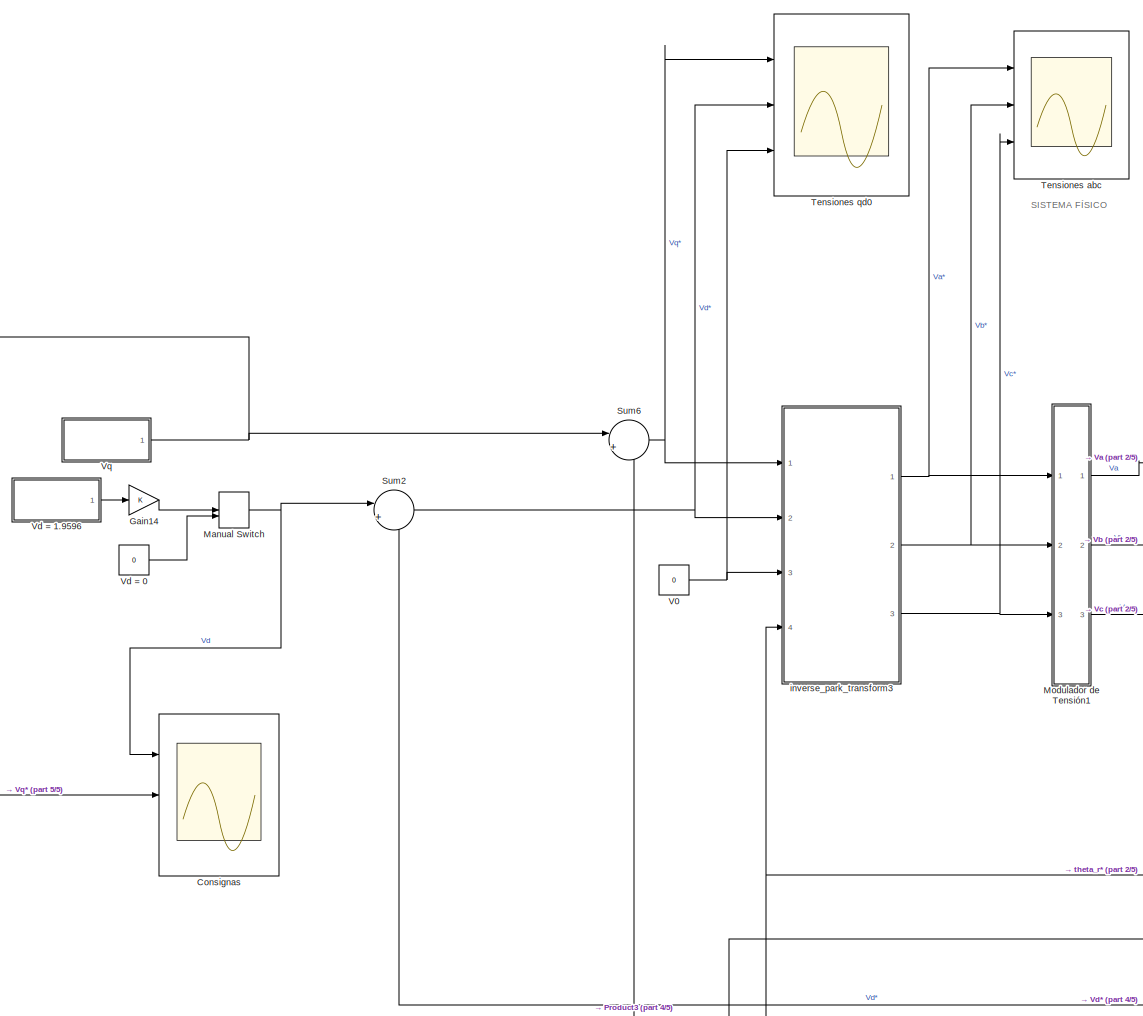
[diagram: root canvas - part 1/5, top left region]
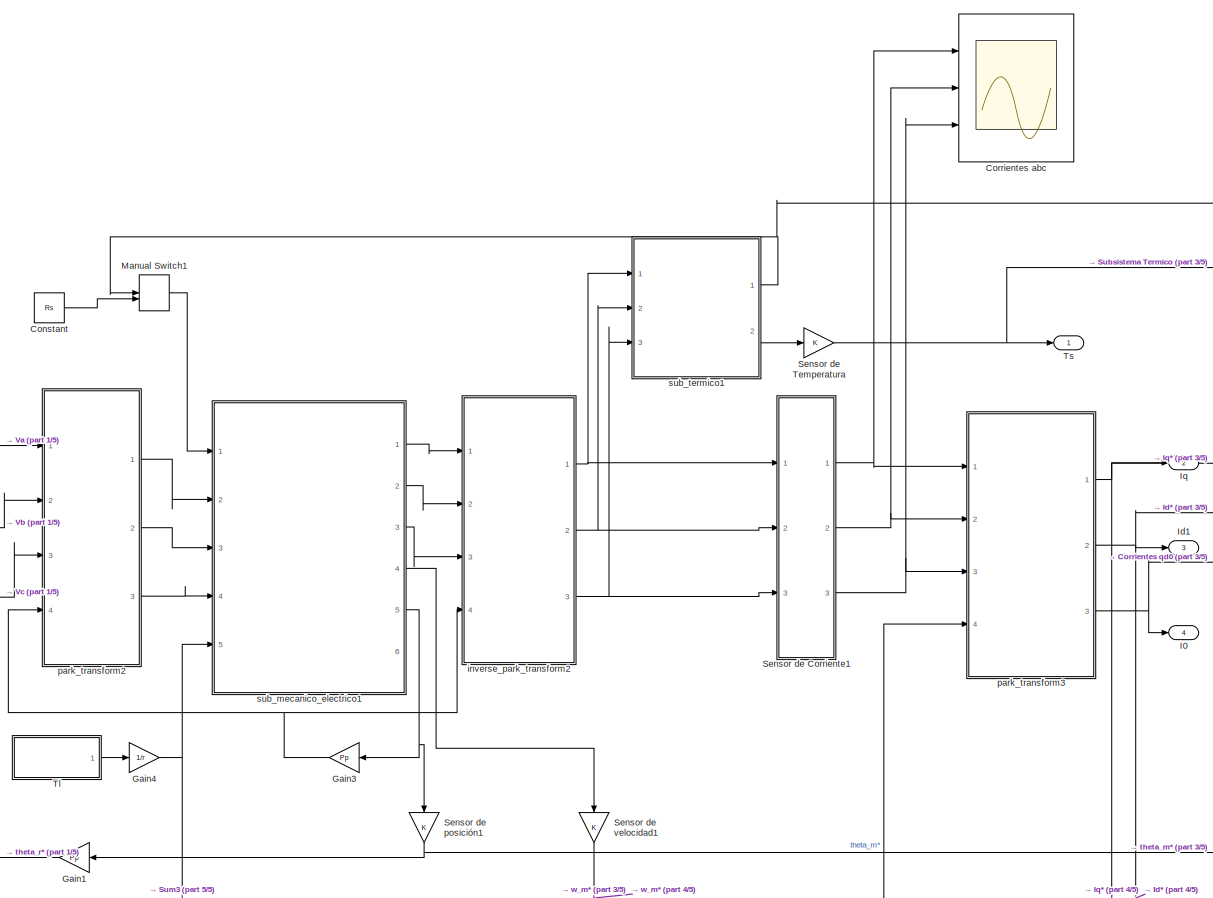
[diagram: root canvas - part 2/5, top center region]
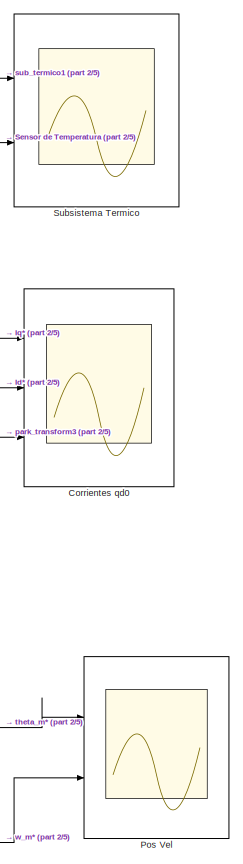
[diagram: root canvas - part 3/5, top right region]
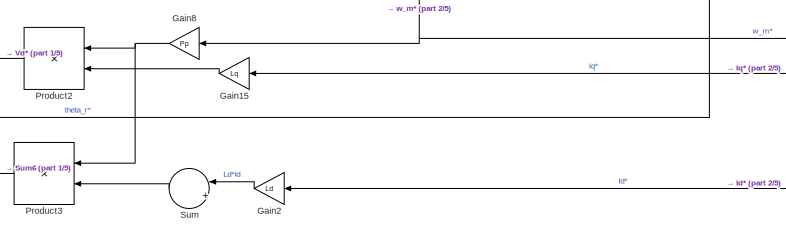
[diagram: root canvas - part 4/5, central region]
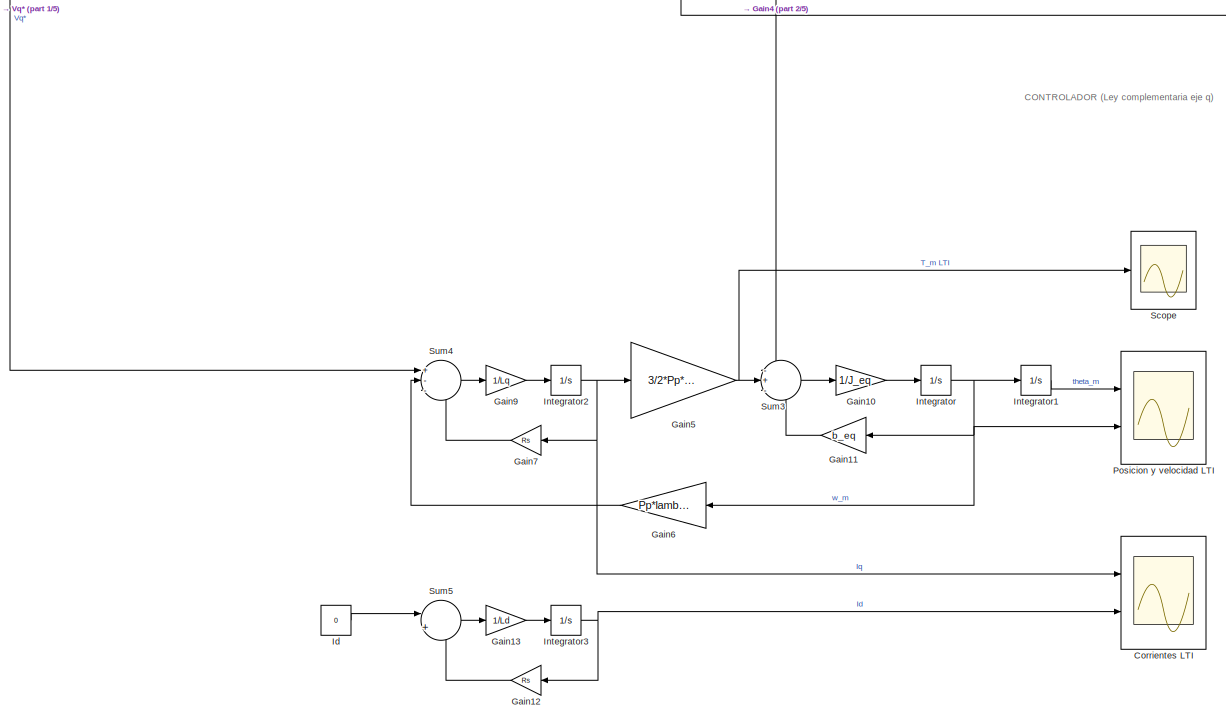
[diagram: root canvas - part 5/5, bottom left region]
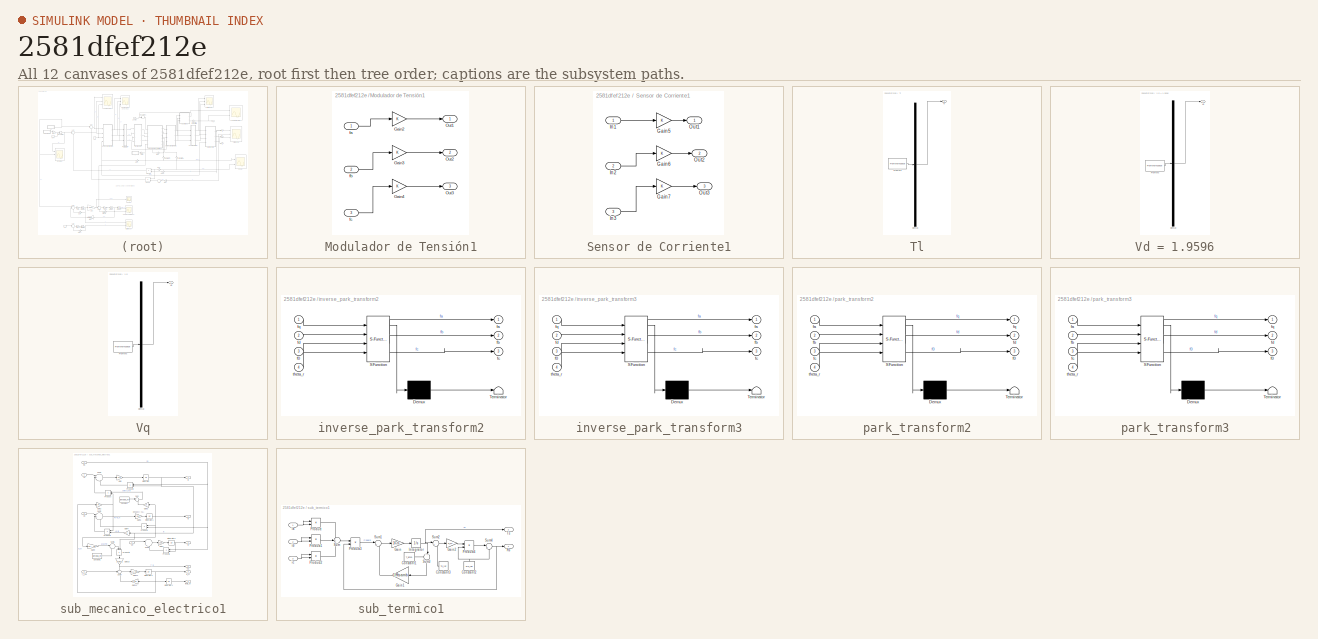
[diagram: thumbnail index - all 12 canvases of the model, root first then tree order]
MODEL slx_2581dfef212e
KIND model
CONFIG AbsTol = auto
CONFIG EnableMultiTasking = off
CONFIG FixedStep = 0.001
CONFIG MaxStep = 0.0001
CONFIG MinStep = auto
CONFIG RelTol = 1e-3
CONFIG SampleTimeConstraint = Unconstrained
CONFIG SolverName = VariableStepAuto
CONFIG StartTime = 0.0
CONFIG StopTime = 1.0
BLOCK [Scope] Consignas
  Floating = off
  NumInputPorts = 3
  Ports = [3]
  ScopeSpecificationString = Simulink.scopes.TimeScopeBlockCfg('CurrentConfiguration', extmgr.ConfigurationSet(extmgr.Configuration('Core','General UI',true,'FigureColor',[0.156862745098039 0.156862745098039 0.156862745098039]),extmgr.Configuration('Core','Source UI',true),extmgr.Configuration('Sources','WiredSimulink',true,'DataLoggingVariableName','Consignas','DataLogging',true,'DataLoggingSaveFormat','StructureWithTime'),e...<+1509ch>
BLOCK [Constant] Constant
  Value = Rs
BLOCK [Scope] Corrientes LTI
  Floating = off
  NumInputPorts = 2
  Ports = [2]
  ScopeSpecificationString = Simulink.scopes.TimeScopeBlockCfg('CurrentConfiguration', extmgr.ConfigurationSet(extmgr.Configuration('Core','General UI',true,'FigureColor',[0.156862745098039 0.156862745098039 0.156862745098039]),extmgr.Configuration('Core','Source UI',true),extmgr.Configuration('Sources','WiredSimulink',true,'DataLoggingVariableName','Corrientes_qd0_LTI','DataLogging',true,'DataLoggingSaveFormat','StructureWit...<+1630ch>
BLOCK [Scope] Corrientes abc
  Floating = off
  NumInputPorts = 3
  Ports = [3]
  ScopeSpecificationString = Simulink.scopes.TimeScopeBlockCfg('CurrentConfiguration', extmgr.ConfigurationSet(extmgr.Configuration('Core','General UI',true,'FigureColor',[0.156862745098039 0.156862745098039 0.156862745098039]),extmgr.Configuration('Core','Source UI',true),extmgr.Configuration('Sources','WiredSimulink',true,'DataLoggingVariableName','Corrientes_abc','DataLogging',true,'DataLoggingSaveFormat','StructureWithTim...<+1688ch>
BLOCK [Scope] Corrientes qd0
  Floating = off
  NumInputPorts = 3
  Ports = [3]
  ScopeSpecificationString = Simulink.scopes.TimeScopeBlockCfg('CurrentConfiguration', extmgr.ConfigurationSet(extmgr.Configuration('Core','General UI',true),extmgr.Configuration('Core','Source UI',true),extmgr.Configuration('Sources','WiredSimulink',true,'DataLoggingVariableName','Corrientes_qd0','DataLogging',true,'DataLoggingSaveFormat','StructureWithTime'),extmgr.Configuration('Visuals','Time Domain',true,'SerializedDispl...<+1456ch>
BLOCK [Gain] Gain1
  Gain = Pp
BLOCK [Gain] Gain10
  Gain = 1/J_eq
BLOCK [Gain] Gain11
  Gain = b_eq
BLOCK [Gain] Gain12
  Gain = Rs
BLOCK [Gain] Gain13
  Gain = 1/Ld
BLOCK [Gain] Gain14
BLOCK [Gain] Gain15
  Gain = Lq
BLOCK [Gain] Gain2
  Gain = Ld
BLOCK [Gain] Gain3
  Gain = Pp
BLOCK [Gain] Gain4
  Gain = 1/r
BLOCK [Gain] Gain5
  Gain = 3/2*Pp*lambda_m
BLOCK [Gain] Gain6
  Gain = Pp*lambda_m
BLOCK [Gain] Gain7
  Gain = Rs
BLOCK [Gain] Gain8
  Gain = Pp
BLOCK [Gain] Gain9
  Gain = 1/Lq
BLOCK [Outport] I0
  Port = 4
BLOCK [Constant] Id
  Value = 0
BLOCK [Outport] Id1
  Port = 3
BLOCK [Integrator] Integrator
  Ports = [1, 1]
BLOCK [Integrator] Integrator1
  Ports = [1, 1]
BLOCK [Integrator] Integrator2
  Ports = [1, 1]
BLOCK [Integrator] Integrator3
  InitialCondition = Id_0
  Ports = [1, 1]
BLOCK [Outport] Iq
  Port = 2
BLOCK [ManualSwitch] Manual Switch
  CurrentSetting = 0
BLOCK [ManualSwitch] Manual Switch1
BLOCK [SubSystem] Modulador de Tensión1
  Ports = [3, 3]
  RequestExecContextInheritance = off
BLOCK [Gain] Modulador de Tensión1/Gain2
BLOCK [Gain] Modulador de Tensión1/Gain3
BLOCK [Gain] Modulador de Tensión1/Gain4
BLOCK [Outport] Modulador de Tensión1/Out1
BLOCK [Outport] Modulador de Tensión1/Out2
  Port = 2
BLOCK [Outport] Modulador de Tensión1/Out3
  Port = 3
BLOCK [Inport] Modulador de Tensión1/fa
BLOCK [Inport] Modulador de Tensión1/fb
  Port = 2
BLOCK [Inport] Modulador de Tensión1/fc
  Port = 3
BLOCK [Scope] Pos Vel
  Floating = off
  NumInputPorts = 2
  Ports = [2]
  ScopeSpecificationString = Simulink.scopes.TimeScopeBlockCfg('CurrentConfiguration', extmgr.ConfigurationSet(extmgr.Configuration('Core','General UI',true),extmgr.Configuration('Core','Source UI',true),extmgr.Configuration('Sources','WiredSimulink',true,'DataLoggingVariableName','Pos_Vel','DataLogging',true,'DataLoggingSaveFormat','StructureWithTime'),extmgr.Configuration('Visuals','Time Domain',true,'SerializedDisplays',{s...<+1529ch>
BLOCK [Scope] Posicion y velocidad LTI
  Floating = off
  NumInputPorts = 2
  Ports = [2]
  ScopeSpecificationString = Simulink.scopes.TimeScopeBlockCfg('CurrentConfiguration', extmgr.ConfigurationSet(extmgr.Configuration('Core','General UI',true,'FigureColor',[0.156862745098039 0.156862745098039 0.156862745098039]),extmgr.Configuration('Core','Source UI',true),extmgr.Configuration('Sources','WiredSimulink',true,'DataLoggingVariableName','Pos_Vel_LTI','DataLogging',true,'DataLoggingSaveFormat','StructureWithTime')...<+1647ch>
BLOCK [Product] Product2
  Ports = [2, 1]
BLOCK [Product] Product3
  Ports = [2, 1]
BLOCK [Scope] Scope
  Floating = off
  NumInputPorts = 1
  Ports = [1]
  ScopeSpecificationString = Simulink.scopes.TimeScopeBlockCfg('CurrentConfiguration', extmgr.ConfigurationSet(extmgr.Configuration('Core','General UI',true),extmgr.Configuration('Core','Source UI',true),extmgr.Configuration('Sources','WiredSimulink',true,'DataLoggingVariableName','Tm_LTI','DataLogging',true,'DataLoggingSaveFormat','StructureWithTime'),extmgr.Configuration('Visuals','Time Domain',true,'SerializedDisplays',{st...<+1425ch>
BLOCK [SubSystem] Sensor de Corriente1
  Ports = [3, 3]
  RequestExecContextInheritance = off
BLOCK [Gain] Sensor de Corriente1/Gain5
BLOCK [Gain] Sensor de Corriente1/Gain6
BLOCK [Gain] Sensor de Corriente1/Gain7
BLOCK [Inport] Sensor de Corriente1/In1
BLOCK [Inport] Sensor de Corriente1/In2
  Port = 2
BLOCK [Inport] Sensor de Corriente1/In3
  Port = 3
BLOCK [Outport] Sensor de Corriente1/Out1
BLOCK [Outport] Sensor de Corriente1/Out2
  Port = 2
BLOCK [Outport] Sensor de Corriente1/Out3
  Port = 3
BLOCK [Gain] Sensor de Temperatura
BLOCK [Gain] Sensor de posición1
  NameLocation = right
BLOCK [Gain] Sensor de velocidad1
  NameLocation = right
BLOCK [Scope] Subsistema Termico
  Floating = off
  NumInputPorts = 2
  Ports = [2]
  ScopeSpecificationString = Simulink.scopes.TimeScopeBlockCfg('CurrentConfiguration', extmgr.ConfigurationSet(extmgr.Configuration('Core','General UI',true),extmgr.Configuration('Core','Source UI',true),extmgr.Configuration('Sources','WiredSimulink',true,'DataLoggingVariableName','Subs_Termico','DataLogging',true,'DataLoggingSaveFormat','StructureWithTime'),extmgr.Configuration('Visuals','Time Domain',true,'SerializedDisplay...<+1466ch>
BLOCK [Sum] Sum
  Inputs = |++
  Ports = [2, 1]
BLOCK [Sum] Sum2
  Inputs = |+-
  Ports = [2, 1]
BLOCK [Sum] Sum3
  Inputs = -+-
  Ports = [3, 1]
BLOCK [Sum] Sum4
  Inputs = +--
  Ports = [3, 1]
BLOCK [Sum] Sum5
  Inputs = |+-
  Ports = [2, 1]
BLOCK [Sum] Sum6
  Inputs = |++
  Ports = [2, 1]
BLOCK [Scope] Tensiones abc
  Floating = off
  NumInputPorts = 3
  Ports = [3]
  ScopeSpecificationString = Simulink.scopes.TimeScopeBlockCfg('CurrentConfiguration', extmgr.ConfigurationSet(extmgr.Configuration('Core','General UI',true,'FigureColor',[0.156862745098039 0.156862745098039 0.156862745098039]),extmgr.Configuration('Core','Source UI',true),extmgr.Configuration('Sources','WiredSimulink',true,'DataLoggingVariableName','Tensiones_abc','DataLogging',true,'DataLoggingSaveFormat','StructureWithTime...<+1652ch>
BLOCK [Scope] Tensiones qd0
  Floating = off
  NumInputPorts = 3
  Ports = [3]
  ScopeSpecificationString = Simulink.scopes.TimeScopeBlockCfg('CurrentConfiguration', extmgr.ConfigurationSet(extmgr.Configuration('Core','General UI',true),extmgr.Configuration('Core','Source UI',true),extmgr.Configuration('Sources','WiredSimulink',true,'DataLoggingVariableName','Tensiones_qd0','DataLogging',true,'DataLoggingSaveFormat','StructureWithTime'),extmgr.Configuration('Visuals','Time Domain',true,'SerializedDispla...<+1524ch>
BLOCK [SubSystem] Tl
  ClipboardFcn = sigbuilder_block('clipboard');
  CloseFcn = sigbuilder_block('close');
  ContinueFcn = sigbuilder_block('continue');
  CopyFcn = sigbuilder_block('copy');
  DeleteFcn = sigbuilder_block('delete');
  LoadFcn = sigbuilder_block('load');
  MaskHideContents = on
  ModelCloseFcn = sigbuilder_block('modelClose');
  NameChangeFcn = sigbuilder_block('namechange');
  OpenFcn = sigbuilder_block('open',[5.5 30 1269 678 ]);
  PauseFcn = sigbuilder_block('pause');
  Ports = [0, 1]
  PreSaveFcn = sigbuilder_block('preSave');
  RequestExecContextInheritance = off
  StartFcn = sigbuilder_block('start');
  StopFcn = sigbuilder_block('stop');
  Tag = STV Subsys
BLOCK [Demux] Tl/Demux
  DisplayOption = none
  Outputs = 1
  Ports = [1, 1]
  Tag = STV Demux
BLOCK [FromWorkspace] Tl/FromWs
  Tag = STV FromWs
  VariableName = tuvar
BLOCK [Outport] Tl/Tl
  Tag = STV Outport
BLOCK [Outport] Ts
BLOCK [Constant] V0
  Value = 0
BLOCK [Constant] Vd = 0
  Value = 0
BLOCK [SubSystem] Vd = 1.9596
  ClipboardFcn = sigbuilder_block('clipboard');
  CloseFcn = sigbuilder_block('close');
  ContinueFcn = sigbuilder_block('continue');
  CopyFcn = sigbuilder_block('copy');
  DeleteFcn = sigbuilder_block('delete');
  LoadFcn = sigbuilder_block('load');
  MaskHideContents = on
  ModelCloseFcn = sigbuilder_block('modelClose');
  NameChangeFcn = sigbuilder_block('namechange');
  OpenFcn = sigbuilder_block('open',[5.5 30 1269 678 ]);
  PauseFcn = sigbuilder_block('pause');
  Ports = [0, 1]
  PreSaveFcn = sigbuilder_block('preSave');
  RequestExecContextInheritance = off
  StartFcn = sigbuilder_block('start');
  StopFcn = sigbuilder_block('stop');
  Tag = STV Subsys
BLOCK [Demux] Vd = 1.9596/Demux
  DisplayOption = none
  Outputs = 1
  Ports = [1, 1]
  Tag = STV Demux
BLOCK [FromWorkspace] Vd = 1.9596/FromWs
  Tag = STV FromWs
  VariableName = tuvar
BLOCK [Outport] Vd = 1.9596/Vd
  Tag = STV Outport
BLOCK [SubSystem] Vq
  ClipboardFcn = sigbuilder_block('clipboard');
  CloseFcn = sigbuilder_block('close');
  ContinueFcn = sigbuilder_block('continue');
  CopyFcn = sigbuilder_block('copy');
  DeleteFcn = sigbuilder_block('delete');
  LoadFcn = sigbuilder_block('load');
  MaskHideContents = on
  ModelCloseFcn = sigbuilder_block('modelClose');
  NameChangeFcn = sigbuilder_block('namechange');
  OpenFcn = sigbuilder_block('open',[5.5 30 1269 678 ]);
  PauseFcn = sigbuilder_block('pause');
  Ports = [0, 1]
  PreSaveFcn = sigbuilder_block('preSave');
  RequestExecContextInheritance = off
  StartFcn = sigbuilder_block('start');
  StopFcn = sigbuilder_block('stop');
  Tag = STV Subsys
BLOCK [Demux] Vq/Demux
  DisplayOption = none
  Outputs = 1
  Ports = [1, 1]
  Tag = STV Demux
BLOCK [FromWorkspace] Vq/FromWs
  Tag = STV FromWs
  VariableName = tuvar
BLOCK [Outport] Vq/Vq
  Tag = STV Outport
BLOCK [SubSystem] inverse_park_transform2
  ErrorFcn = Stateflow.Translate.translate
  PermitHierarchicalResolution = ExplicitOnly
  Ports = [4, 3]
  RequestExecContextInheritance = off
  SFBlockType = MATLAB Function
  TreatAsAtomicUnit = on
BLOCK [Demux] inverse_park_transform2/ Demux 
  Outputs = 1
  Ports = [1, 1]
BLOCK [S-Function] inverse_park_transform2/ SFunction 
  EnableBusSupport = on
  FunctionName = sf_sfun
  PortCounts = [4 4]
  Ports = [4, 4]
  SFcnIsStateOwnerBlock = off
  SFunctionDeploymentMode = off
  Tag = Stateflow S-Function 39
BLOCK [Terminator] inverse_park_transform2/ Terminator 
BLOCK [Inport] inverse_park_transform2/f0
  Port = 3
BLOCK [Outport] inverse_park_transform2/fa
BLOCK [Outport] inverse_park_transform2/fb
  Port = 2
BLOCK [Outport] inverse_park_transform2/fc
  Port = 3
BLOCK [Inport] inverse_park_transform2/fd
  Port = 2
BLOCK [Inport] inverse_park_transform2/fq
BLOCK [Inport] inverse_park_transform2/theta_r
  Port = 4
BLOCK [SubSystem] inverse_park_transform3
  ErrorFcn = Stateflow.Translate.translate
  PermitHierarchicalResolution = ExplicitOnly
  Ports = [4, 3]
  RequestExecContextInheritance = off
  SFBlockType = MATLAB Function
  TreatAsAtomicUnit = on
BLOCK [Demux] inverse_park_transform3/ Demux 
  Outputs = 1
  Ports = [1, 1]
BLOCK [S-Function] inverse_park_transform3/ SFunction 
  EnableBusSupport = on
  FunctionName = sf_sfun
  PortCounts = [4 4]
  Ports = [4, 4]
  SFcnIsStateOwnerBlock = off
  SFunctionDeploymentMode = off
  Tag = Stateflow S-Function 40
BLOCK [Terminator] inverse_park_transform3/ Terminator 
BLOCK [Inport] inverse_park_transform3/f0
  Port = 3
BLOCK [Outport] inverse_park_transform3/fa
BLOCK [Outport] inverse_park_transform3/fb
  Port = 2
BLOCK [Outport] inverse_park_transform3/fc
  Port = 3
BLOCK [Inport] inverse_park_transform3/fd
  Port = 2
BLOCK [Inport] inverse_park_transform3/fq
BLOCK [Inport] inverse_park_transform3/theta_r
  Port = 4
BLOCK [SubSystem] park_transform2
  ErrorFcn = Stateflow.Translate.translate
  PermitHierarchicalResolution = ExplicitOnly
  Ports = [4, 3]
  RequestExecContextInheritance = off
  SFBlockType = MATLAB Function
  TreatAsAtomicUnit = on
BLOCK [Demux] park_transform2/ Demux 
  Outputs = 1
  Ports = [1, 1]
BLOCK [S-Function] park_transform2/ SFunction 
  EnableBusSupport = on
  FunctionName = sf_sfun
  PortCounts = [4 4]
  Ports = [4, 4]
  SFcnIsStateOwnerBlock = off
  SFunctionDeploymentMode = off
  Tag = Stateflow S-Function 41
BLOCK [Terminator] park_transform2/ Terminator 
BLOCK [Outport] park_transform2/f0
  Port = 3
BLOCK [Inport] park_transform2/fa
BLOCK [Inport] park_transform2/fb
  Port = 2
BLOCK [Inport] park_transform2/fc
  Port = 3
BLOCK [Outport] park_transform2/fd
  Port = 2
BLOCK [Outport] park_transform2/fq
BLOCK [Inport] park_transform2/theta_r
  Port = 4
BLOCK [SubSystem] park_transform3
  ErrorFcn = Stateflow.Translate.translate
  PermitHierarchicalResolution = ExplicitOnly
  Ports = [4, 3]
  RequestExecContextInheritance = off
  SFBlockType = MATLAB Function
  TreatAsAtomicUnit = on
BLOCK [Demux] park_transform3/ Demux 
  Outputs = 1
  Ports = [1, 1]
BLOCK [S-Function] park_transform3/ SFunction 
  EnableBusSupport = on
  FunctionName = sf_sfun
  PortCounts = [4 4]
  Ports = [4, 4]
  SFcnIsStateOwnerBlock = off
  SFunctionDeploymentMode = off
  Tag = Stateflow S-Function 42
BLOCK [Terminator] park_transform3/ Terminator 
BLOCK [Outport] park_transform3/f0
  Port = 3
BLOCK [Inport] park_transform3/fa
BLOCK [Inport] park_transform3/fb
  Port = 2
BLOCK [Inport] park_transform3/fc
  Port = 3
BLOCK [Outport] park_transform3/fd
  Port = 2
BLOCK [Outport] park_transform3/fq
BLOCK [Inport] park_transform3/theta_r
  Port = 4
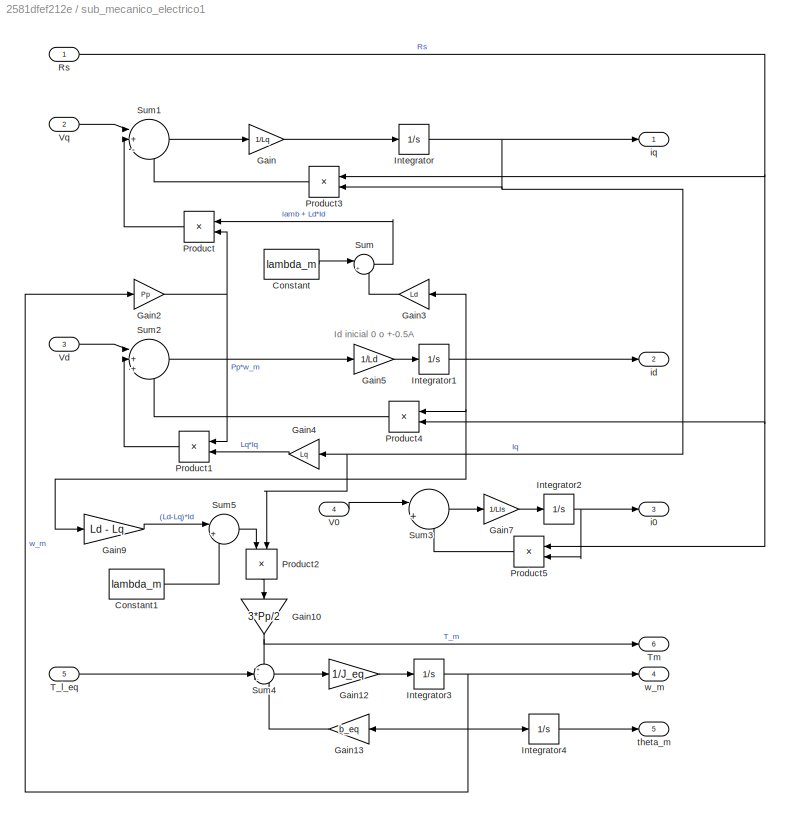
BLOCK [SubSystem] sub_mecanico_electrico1
  Ports = [5, 6]
  RequestExecContextInheritance = off
BLOCK [Constant] sub_mecanico_electrico1/Constant
  Value = lambda_m
BLOCK [Constant] sub_mecanico_electrico1/Constant1
  Value = lambda_m
BLOCK [Gain] sub_mecanico_electrico1/Gain
  Gain = 1/Lq
BLOCK [Gain] sub_mecanico_electrico1/Gain10
  Gain = 3*Pp/2
  NameLocation = left
BLOCK [Gain] sub_mecanico_electrico1/Gain12
  Gain = 1/J_eq
BLOCK [Gain] sub_mecanico_electrico1/Gain13
  Gain = b_eq
BLOCK [Gain] sub_mecanico_electrico1/Gain2
  Gain = Pp
BLOCK [Gain] sub_mecanico_electrico1/Gain3
  Gain = Ld
BLOCK [Gain] sub_mecanico_electrico1/Gain4
  Gain = Lq
  NameLocation = top
BLOCK [Gain] sub_mecanico_electrico1/Gain5
  Gain = 1/Ld
BLOCK [Gain] sub_mecanico_electrico1/Gain7
  Gain = 1/Lls
BLOCK [Gain] sub_mecanico_electrico1/Gain9
  Gain = Ld - Lq
BLOCK [Integrator] sub_mecanico_electrico1/Integrator
  Ports = [1, 1]
BLOCK [Integrator] sub_mecanico_electrico1/Integrator1
  InitialCondition = Id_0
  Ports = [1, 1]
BLOCK [Integrator] sub_mecanico_electrico1/Integrator2
  Ports = [1, 1]
BLOCK [Integrator] sub_mecanico_electrico1/Integrator3
  Ports = [1, 1]
BLOCK [Integrator] sub_mecanico_electrico1/Integrator4
  Ports = [1, 1]
BLOCK [Product] sub_mecanico_electrico1/Product
  Ports = [2, 1]
BLOCK [Product] sub_mecanico_electrico1/Product1
  Ports = [2, 1]
BLOCK [Product] sub_mecanico_electrico1/Product2
  NameLocation = left
  Ports = [2, 1]
BLOCK [Product] sub_mecanico_electrico1/Product3
  Ports = [2, 1]
BLOCK [Product] sub_mecanico_electrico1/Product4
  Ports = [2, 1]
BLOCK [Product] sub_mecanico_electrico1/Product5
  Ports = [2, 1]
BLOCK [Inport] sub_mecanico_electrico1/Rs
BLOCK [Sum] sub_mecanico_electrico1/Sum
  Inputs = |++
  Ports = [2, 1]
BLOCK [Sum] sub_mecanico_electrico1/Sum1
  Inputs = |+--
  Ports = [3, 1]
BLOCK [Sum] sub_mecanico_electrico1/Sum2
  Inputs = |++-
  Ports = [3, 1]
BLOCK [Sum] sub_mecanico_electrico1/Sum3
  Inputs = |+-
  Ports = [2, 1]
BLOCK [Sum] sub_mecanico_electrico1/Sum4
  Inputs = +--
  Ports = [3, 1]
BLOCK [Sum] sub_mecanico_electrico1/Sum5
  Inputs = |++
  Ports = [2, 1]
BLOCK [Inport] sub_mecanico_electrico1/T_l_eq
  Port = 5
BLOCK [Outport] sub_mecanico_electrico1/Tm
  Port = 6
BLOCK [Inport] sub_mecanico_electrico1/V0
  Port = 4
BLOCK [Inport] sub_mecanico_electrico1/Vd
  Port = 3
BLOCK [Inport] sub_mecanico_electrico1/Vq
  Port = 2
BLOCK [Outport] sub_mecanico_electrico1/i0
  Port = 3
BLOCK [Outport] sub_mecanico_electrico1/id
  Port = 2
BLOCK [Outport] sub_mecanico_electrico1/iq
BLOCK [Outport] sub_mecanico_electrico1/theta_m
  Port = 5
BLOCK [Outport] sub_mecanico_electrico1/w_m
  Port = 4
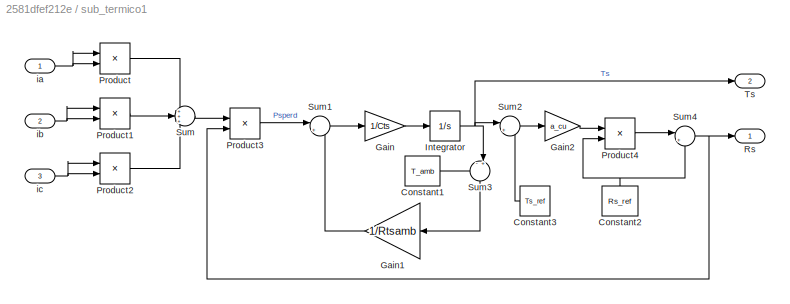
BLOCK [SubSystem] sub_termico1
  Ports = [3, 2]
  RequestExecContextInheritance = off
BLOCK [Constant] sub_termico1/Constant1
  Value = T_amb
BLOCK [Constant] sub_termico1/Constant2
  NameLocation = right
  Value = Rs_ref
BLOCK [Constant] sub_termico1/Constant3
  Value = Ts_ref
BLOCK [Gain] sub_termico1/Gain
  Gain = 1/Cts
BLOCK [Gain] sub_termico1/Gain1
  Gain = 1/Rtsamb
BLOCK [Gain] sub_termico1/Gain2
  Gain = a_cu
BLOCK [Integrator] sub_termico1/Integrator
  InitialCondition = T_0
  Ports = [1, 1]
BLOCK [Product] sub_termico1/Product
  Ports = [2, 1]
BLOCK [Product] sub_termico1/Product1
  Ports = [2, 1]
BLOCK [Product] sub_termico1/Product2
  Ports = [2, 1]
BLOCK [Product] sub_termico1/Product3
  Ports = [2, 1]
BLOCK [Product] sub_termico1/Product4
  Ports = [2, 1]
BLOCK [Outport] sub_termico1/Rs
BLOCK [Sum] sub_termico1/Sum
  Inputs = +++
  Ports = [3, 1]
BLOCK [Sum] sub_termico1/Sum1
  Inputs = |+-
  Ports = [2, 1]
BLOCK [Sum] sub_termico1/Sum2
  Inputs = |+-
  Ports = [2, 1]
BLOCK [Sum] sub_termico1/Sum3
  Inputs = -+|
  NameLocation = right
  Ports = [2, 1]
BLOCK [Sum] sub_termico1/Sum4
  Inputs = |++
  Ports = [2, 1]
BLOCK [Outport] sub_termico1/Ts
  Port = 2
BLOCK [Inport] sub_termico1/ia
BLOCK [Inport] sub_termico1/ib
  Port = 2
BLOCK [Inport] sub_termico1/ic
  Port = 3
ANNOTATION (root): SISTEMA FÍSICO
ANNOTATION (root): CONTROLADOR (Ley complementaria eje q)
ANNOTATION sub_mecanico_electrico1: Id inicial 0 o +-0.5A
LINE Constant:1 -> Manual Switch1:2
LINE Gain10:1 -> Integrator:1
LINE Gain11:1 -> Sum3:3
LINE Gain12:1 -> Sum5:2
LINE Gain13:1 -> Integrator3:1
LINE Gain14:1 -> Manual Switch:1
LINE Gain15:1 -> Product2:2
NET Gain1:1 -> inverse_park_transform3:4, park_transform3:4
LINE Gain2:1 -> Sum:1
NET Gain3:1 -> inverse_park_transform2:4, park_transform2:4
NET Gain4:1 -> Sum3:1, sub_mecanico_electrico1:5
NET Gain5:1 -> Scope:1, Sum3:2
LINE Gain6:1 -> Sum4:2
LINE Gain7:1 -> Sum4:3
NET Gain8:1 -> Product2:1, Product3:1
LINE Gain9:1 -> Integrator2:1
LINE Id:1 -> Sum5:1
LINE Integrator1:1 -> Posicion y velocidad LTI:1
NET Integrator2:1 -> Corrientes LTI:1, Gain5:1, Gain7:1
NET Integrator3:1 -> Corrientes LTI:2, Gain12:1
NET Integrator:1 -> Gain11:1, Gain6:1, Integrator1:1, Posicion y velocidad LTI:2
LINE Manual Switch1:1 -> sub_mecanico_electrico1:1
NET Manual Switch:1 -> Consignas:1, Sum2:1
LINE Modulador de Tensión1/Gain2:1 -> Modulador de Tensión1/Out1:1
LINE Modulador de Tensión1/Gain3:1 -> Modulador de Tensión1/Out2:1
LINE Modulador de Tensión1/Gain4:1 -> Modulador de Tensión1/Out3:1
LINE Modulador de Tensión1/fa:1 -> Modulador de Tensión1/Gain2:1
LINE Modulador de Tensión1/fb:1 -> Modulador de Tensión1/Gain3:1
LINE Modulador de Tensión1/fc:1 -> Modulador de Tensión1/Gain4:1
LINE Modulador de Tensión1:1 -> park_transform2:1
LINE Modulador de Tensión1:2 -> park_transform2:2
LINE Modulador de Tensión1:3 -> park_transform2:3
LINE Product2:1 -> Sum2:2
LINE Product3:1 -> Sum6:2
LINE Sensor de Corriente1/Gain5:1 -> Sensor de Corriente1/Out1:1
LINE Sensor de Corriente1/Gain6:1 -> Sensor de Corriente1/Out2:1
LINE Sensor de Corriente1/Gain7:1 -> Sensor de Corriente1/Out3:1
LINE Sensor de Corriente1/In1:1 -> Sensor de Corriente1/Gain5:1
LINE Sensor de Corriente1/In2:1 -> Sensor de Corriente1/Gain6:1
LINE Sensor de Corriente1/In3:1 -> Sensor de Corriente1/Gain7:1
NET Sensor de Corriente1:1 -> Corrientes abc:1, park_transform3:1
NET Sensor de Corriente1:2 -> Corrientes abc:2, park_transform3:2
NET Sensor de Corriente1:3 -> Corrientes abc:3, park_transform3:3
NET Sensor de Temperatura:1 -> Subsistema Termico:2, Ts:1
NET Sensor de posición1:1 -> Gain1:1, Pos Vel:1
NET Sensor de velocidad1:1 -> Gain8:1, Pos Vel:2
NET Sum2:1 -> Tensiones qd0:2, inverse_park_transform3:2
LINE Sum3:1 -> Gain10:1
LINE Sum4:1 -> Gain9:1
LINE Sum5:1 -> Gain13:1
NET Sum6:1 -> Tensiones qd0:1, inverse_park_transform3:1
LINE Sum:1 -> Product3:2
LINE Tl:1 -> Gain4:1
NET V0:1 -> Tensiones qd0:3, inverse_park_transform3:3
LINE Vd = 0:1 -> Manual Switch:2
LINE Vd = 1.9596:1 -> Gain14:1
NET Vq:1 -> Consignas:2, Sum4:1, Sum6:1
NET inverse_park_transform2:1 -> Sensor de Corriente1:1, sub_termico1:1
NET inverse_park_transform2:2 -> Sensor de Corriente1:2, sub_termico1:2
NET inverse_park_transform2:3 -> Sensor de Corriente1:3, sub_termico1:3
NET inverse_park_transform3:1 -> Modulador de Tensión1:1, Tensiones abc:1
NET inverse_park_transform3:2 -> Modulador de Tensión1:2, Tensiones abc:2
NET inverse_park_transform3:3 -> Modulador de Tensión1:3, Tensiones abc:3
LINE park_transform2:1 -> sub_mecanico_electrico1:2
LINE park_transform2:2 -> sub_mecanico_electrico1:3
LINE park_transform2:3 -> sub_mecanico_electrico1:4
NET park_transform3:1 -> Corrientes qd0:1, Gain15:1, Iq:1
NET park_transform3:2 -> Corrientes qd0:2, Gain2:1, Id1:1
NET park_transform3:3 -> Corrientes qd0:3, I0:1
LINE sub_mecanico_electrico1/Constant1:1 -> sub_mecanico_electrico1/Sum5:2
LINE sub_mecanico_electrico1/Constant:1 -> sub_mecanico_electrico1/Sum:1
NET sub_mecanico_electrico1/Gain10:1 -> sub_mecanico_electrico1/Sum4:1, sub_mecanico_electrico1/Tm:1
LINE sub_mecanico_electrico1/Gain12:1 -> sub_mecanico_electrico1/Integrator3:1
LINE sub_mecanico_electrico1/Gain13:1 -> sub_mecanico_electrico1/Sum4:3
NET sub_mecanico_electrico1/Gain2:1 -> sub_mecanico_electrico1/Product1:1, sub_mecanico_electrico1/Product:2
LINE sub_mecanico_electrico1/Gain3:1 -> sub_mecanico_electrico1/Sum:2
LINE sub_mecanico_electrico1/Gain4:1 -> sub_mecanico_electrico1/Product1:2
LINE sub_mecanico_electrico1/Gain5:1 -> sub_mecanico_electrico1/Integrator1:1
LINE sub_mecanico_electrico1/Gain7:1 -> sub_mecanico_electrico1/Integrator2:1
LINE sub_mecanico_electrico1/Gain9:1 -> sub_mecanico_electrico1/Sum5:1
LINE sub_mecanico_electrico1/Gain:1 -> sub_mecanico_electrico1/Integrator:1
NET sub_mecanico_electrico1/Integrator1:1 -> sub_mecanico_electrico1/Gain3:1, sub_mecanico_electrico1/Gain9:1, sub_mecanico_electrico1/Product4:1, sub_mecanico_electrico1/id:1
NET sub_mecanico_electrico1/Integrator2:1 -> sub_mecanico_electrico1/Product5:2, sub_mecanico_electrico1/i0:1
NET sub_mecanico_electrico1/Integrator3:1 -> sub_mecanico_electrico1/Gain13:1, sub_mecanico_electrico1/Gain2:1, sub_mecanico_electrico1/Integrator4:1, sub_mecanico_electrico1/w_m:1
LINE sub_mecanico_electrico1/Integrator4:1 -> sub_mecanico_electrico1/theta_m:1
NET sub_mecanico_electrico1/Integrator:1 -> sub_mecanico_electrico1/Gain4:1, sub_mecanico_electrico1/Product2:2, sub_mecanico_electrico1/Product3:2, sub_mecanico_electrico1/iq:1
LINE sub_mecanico_electrico1/Product1:1 -> sub_mecanico_electrico1/Sum2:2
LINE sub_mecanico_electrico1/Product2:1 -> sub_mecanico_electrico1/Gain10:1
LINE sub_mecanico_electrico1/Product3:1 -> sub_mecanico_electrico1/Sum1:3
LINE sub_mecanico_electrico1/Product4:1 -> sub_mecanico_electrico1/Sum2:3
LINE sub_mecanico_electrico1/Product5:1 -> sub_mecanico_electrico1/Sum3:2
LINE sub_mecanico_electrico1/Product:1 -> sub_mecanico_electrico1/Sum1:2
NET sub_mecanico_electrico1/Rs:1 -> sub_mecanico_electrico1/Product3:1, sub_mecanico_electrico1/Product4:2, sub_mecanico_electrico1/Product5:1
LINE sub_mecanico_electrico1/Sum1:1 -> sub_mecanico_electrico1/Gain:1
LINE sub_mecanico_electrico1/Sum2:1 -> sub_mecanico_electrico1/Gain5:1
LINE sub_mecanico_electrico1/Sum3:1 -> sub_mecanico_electrico1/Gain7:1
LINE sub_mecanico_electrico1/Sum4:1 -> sub_mecanico_electrico1/Gain12:1
LINE sub_mecanico_electrico1/Sum5:1 -> sub_mecanico_electrico1/Product2:1
LINE sub_mecanico_electrico1/Sum:1 -> sub_mecanico_electrico1/Product:1
LINE sub_mecanico_electrico1/T_l_eq:1 -> sub_mecanico_electrico1/Sum4:2
LINE sub_mecanico_electrico1/V0:1 -> sub_mecanico_electrico1/Sum3:1
LINE sub_mecanico_electrico1/Vd:1 -> sub_mecanico_electrico1/Sum2:1
LINE sub_mecanico_electrico1/Vq:1 -> sub_mecanico_electrico1/Sum1:1
LINE sub_mecanico_electrico1:1 -> inverse_park_transform2:1
LINE sub_mecanico_electrico1:2 -> inverse_park_transform2:2
LINE sub_mecanico_electrico1:3 -> inverse_park_transform2:3
LINE sub_mecanico_electrico1:4 -> Sensor de velocidad1:1
NET sub_mecanico_electrico1:5 -> Gain3:1, Sensor de posición1:1
LINE sub_termico1/Constant1:1 -> sub_termico1/Sum3:1
NET sub_termico1/Constant2:1 -> sub_termico1/Product4:2, sub_termico1/Sum4:2
LINE sub_termico1/Constant3:1 -> sub_termico1/Sum2:2
LINE sub_termico1/Gain1:1 -> sub_termico1/Sum1:2
LINE sub_termico1/Gain2:1 -> sub_termico1/Product4:1
LINE sub_termico1/Gain:1 -> sub_termico1/Integrator:1
NET sub_termico1/Integrator:1 -> sub_termico1/Sum2:1, sub_termico1/Sum3:2, sub_termico1/Ts:1
LINE sub_termico1/Product1:1 -> sub_termico1/Sum:2
LINE sub_termico1/Product2:1 -> sub_termico1/Sum:3
LINE sub_termico1/Product3:1 -> sub_termico1/Sum1:1
LINE sub_termico1/Product4:1 -> sub_termico1/Sum4:1
LINE sub_termico1/Product:1 -> sub_termico1/Sum:1
LINE sub_termico1/Sum1:1 -> sub_termico1/Gain:1
LINE sub_termico1/Sum2:1 -> sub_termico1/Gain2:1
LINE sub_termico1/Sum3:1 -> sub_termico1/Gain1:1
NET sub_termico1/Sum4:1 -> sub_termico1/Product3:2, sub_termico1/Rs:1
LINE sub_termico1/Sum:1 -> sub_termico1/Product3:1
NET sub_termico1/ia:1 -> sub_termico1/Product:1, sub_termico1/Product:2
NET sub_termico1/ib:1 -> sub_termico1/Product1:1, sub_termico1/Product1:2
NET sub_termico1/ic:1 -> sub_termico1/Product2:1, sub_termico1/Product2:2
NET sub_termico1:1 -> Manual Switch1:1, Subsistema Termico:1
LINE sub_termico1:2 -> Sensor de Temperatura:1
note: NET lines group one-source signal fan-out (src -> all destinations, sorted); 1:1 wires keep LINE
CHART inverse_park_transform2 states=1 transitions=1
  STATE_LABEL 'eML_blk_kernel()'
  STATE_LABEL 'SCRIPT:\nfunction [fa, fb, fc] =  inverse_park_transform(fq, fd, f0, theta_r)\n\nITP = [cos(theta_r)             sin(theta_r)           1;\n       cos(theta_r - 2*pi/3)    sin(theta_r - 2*pi/3)  1;\n       cos(theta_r + 2*pi/3)    sin(theta_r + 2*pi/3)  1];\n\nabc = ITP*[fq; \n           fd; \n           f0];\n\nfa = abc(1);\nfb = abc(2);\nfc = abc(3);\nend'
CHART inverse_park_transform3 states=1 transitions=1
  STATE_LABEL 'eML_blk_kernel()'
  STATE_LABEL 'SCRIPT:\nfunction [fa, fb, fc] =  inverse_park_transform(fq, fd, f0, theta_r)\n\nITP = [cos(theta_r)             sin(theta_r)           1;\n       cos(theta_r - 2*pi/3)    sin(theta_r - 2*pi/3)  1;\n       cos(theta_r + 2*pi/3)    sin(theta_r + 2*pi/3)  1];\n\nabc = ITP*[fq; \n           fd; \n           f0];\n\nfa = abc(1);\nfb = abc(2);\nfc = abc(3);\nend'
CHART park_transform2 states=1 transitions=1
  STATE_LABEL 'eML_blk_kernel()'
  STATE_LABEL 'SCRIPT:\nfunction [fq, fd, f0] =  park_transform(fa, fb, fc, theta_r)\n    \nTP = 2/3*[cos(theta_r)  cos(theta_r - 2*pi/3)   cos(theta_r + 2*pi/3);\n          sin(theta_r)  sin(theta_r - 2*pi/3)   sin(theta_r + 2*pi/3);\n          1/2           1/2                     1/2];\n     \nqd0 = TP * [fa; \n            fb; \n            fc];\n\nfq = qd0(1);\nfd = qd0(2);\nf0 = qd0(3);\nend\n'
CHART park_transform3 states=1 transitions=1
  STATE_LABEL 'eML_blk_kernel()'
  STATE_LABEL 'SCRIPT:\nfunction [fq, fd, f0] =  park_transform(fa, fb, fc, theta_r)\n    \nTP = 2/3*[cos(theta_r)  cos(theta_r - 2*pi/3)   cos(theta_r + 2*pi/3);\n          sin(theta_r)  sin(theta_r - 2*pi/3)   sin(theta_r + 2*pi/3);\n          1/2           1/2                     1/2];\n     \nqd0 = TP * [fa; \n            fb; \n            fc];\n\nfq = qd0(1);\nfd = qd0(2);\nf0 = qd0(3);\nend\n'
CHART  states=0 transitions=0
CHART  states=0 transitions=0
CHART  states=0 transitions=0
CHART  states=0 transitions=0
